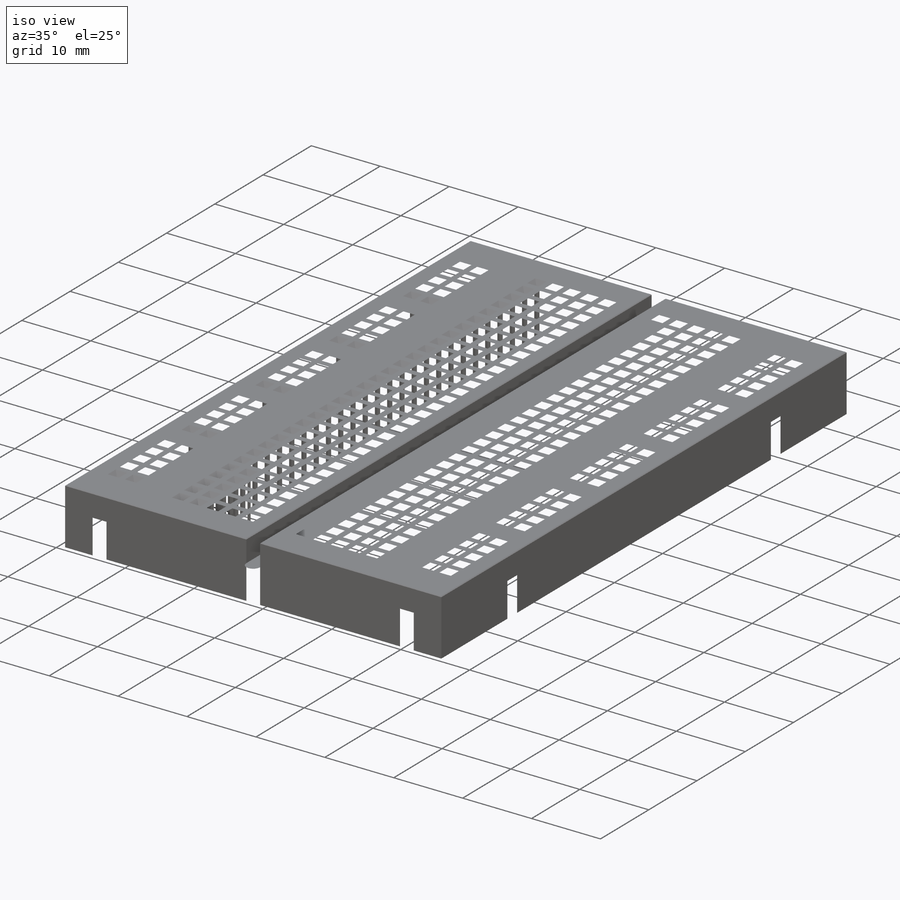
[diagram: iso view]
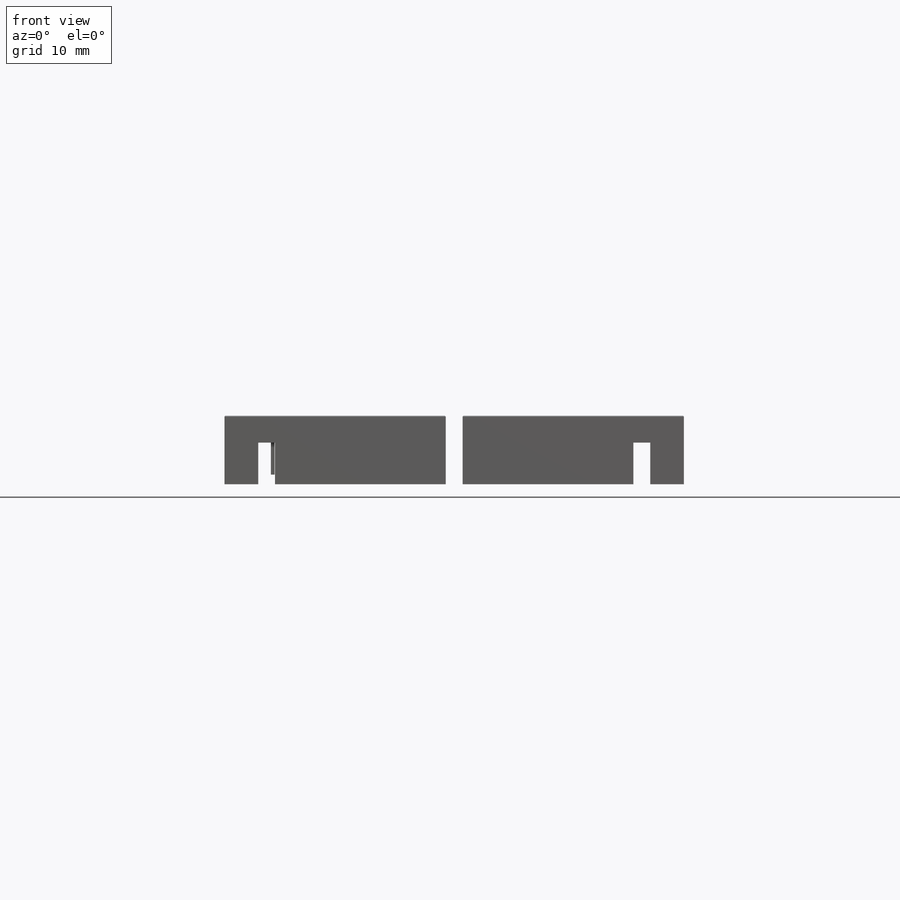
[diagram: front view]
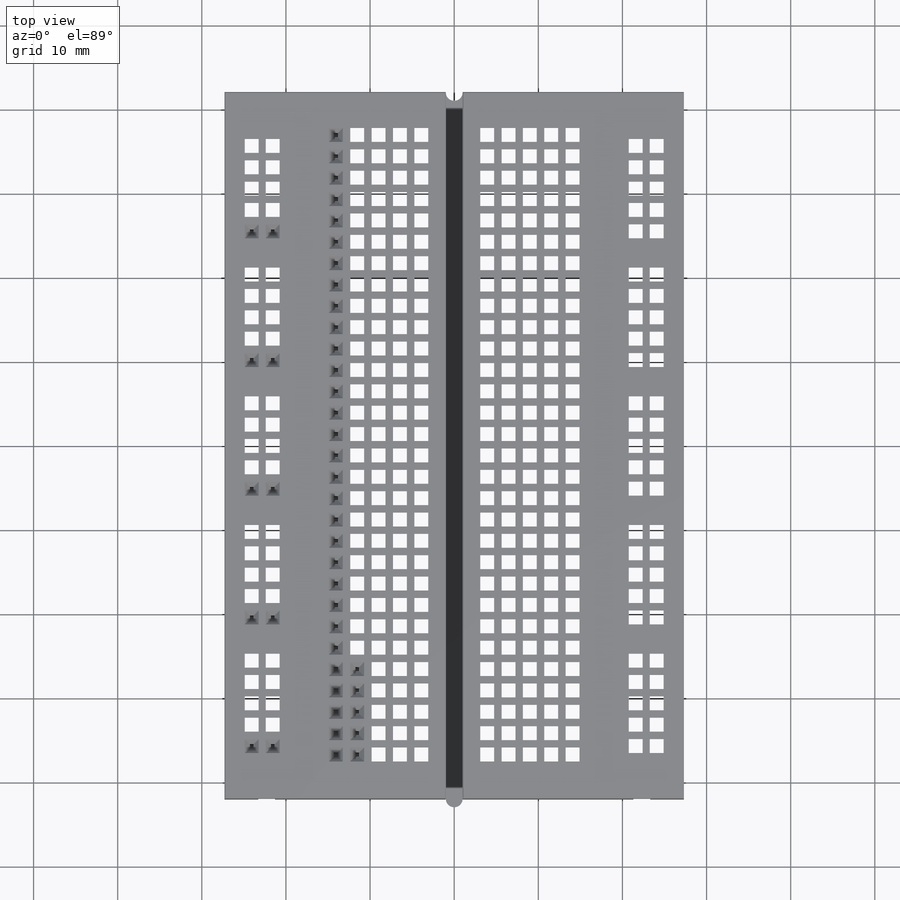
[diagram: top view]
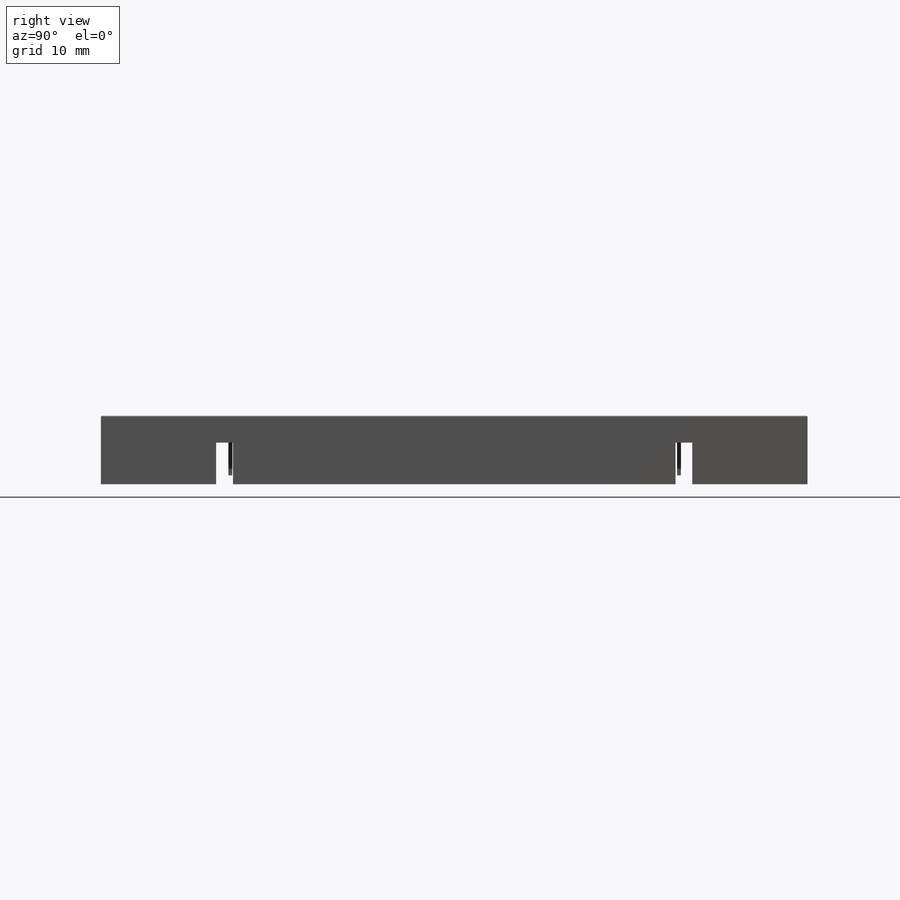
[diagram: right view]
SOLIDWORKS PART (.sldprt)
format: sldprt  version: not decoded by parser v0  size: 8,071,680 bytes
history: native  units: mm
features: sketch x11, cut_extrude x4, chamfer x3, extrude x2, pattern_linear x2, fillet x2, material x1, mirror x1 (+12 scaffold rows collapsed)
feature tree (38):
  scaffold x12  (default folders/planes/origin — collapsed)
  material  "ABS"
  sketch  "Sketch1"  dims[D1=54.6mm D2=84.0mm]
  extrude  "Boss-Extrude1"  Depth=8.15mm
  sketch  "Sketch2"  dims[D1=2.0mm]
  cut_extrude  "Cut-Extrude1"  Depth=3.2mm
  chamfer  "Chamfer1"  Distance=0.1mm Angle=45deg
  sketch  "Sketch4"  dims[c1.D1=0.45mm c1.D2=0.45mm c1.D3=5.0mm c1.D4=2.8mm c1.D7=2.5mm c2.D2=2.0mm c2.D4=13.0mm c2.D6=17.0]
  cut_extrude  "Cut-Extrude2"  Depth=7.09mm
  sketch  "Sketch5"  dims[c1.D1=3.0mm c1.D2=6.0mm c1.D3=21.4mm c2.D3=5.0 c2.D4=2.0]
  cut_extrude  "Cut-Extrude3"  Depth=7mm
  chamfer  "Chamfer2"  Distance=0.6mm Angle=45deg
  chamfer  "Chamfer3"  Distance=0.6mm Angle=45deg
  pattern_linear  "LPattern1"  Count1=30 Count2=5 Spacing1=2.54mm Spacing2=2.54mm
  pattern_linear  "LPattern2"  Count1=5 Count2=1 Spacing1=2.54mm Spacing2=2.5mm
  mirror  "Mirror1"
  sketch  "Sketch6"  dims[c1.D9=1.0mm c1.D1=2.0mm c1.D2=13.7mm c1.D3=13.7mm c1.D4=2.0mm c2.D3=2.0mm c2.D4=13.7mm c2.D5=4.0mm c2.D6=2.0mm c2.D7=2.0mm c2.D8=4.0mm]
  extrude  "Boss-Extrude2"  [1 undecoded]
  sketch  "Sketch7"
  sketch  "Sketch8"  dims[D1=8.0mm]
  sketch  "Sketch9"
  sketch  "Sketch10"
  sketch  "Sketch12"
  sketch  "Sketch13"  dims[c1.D9=1.0mm c1.D1=2.0mm c1.D2=13.7mm c1.D3=13.7mm c1.D4=2.0mm c2.D3=2.0mm c2.D4=13.7mm c2.D5=4.0mm c2.D6=2.0mm c2.D7=2.0mm c2.D8=4.0mm c2.D2=4.0mm c3.D4=4.0mm]
  cut_extrude  "Cut-Extrude4"  [1 undecoded]
  fillet  "Fillet2"  Radius=0.05mm
  fillet  "Fillet3"  Radius=0.1mm
decode coverage: 18 of 25 modeling features carry decoded parameters
note: 2 parameter values undecoded
note: suppression state not decoded; provenance and decode notes live in map.json
